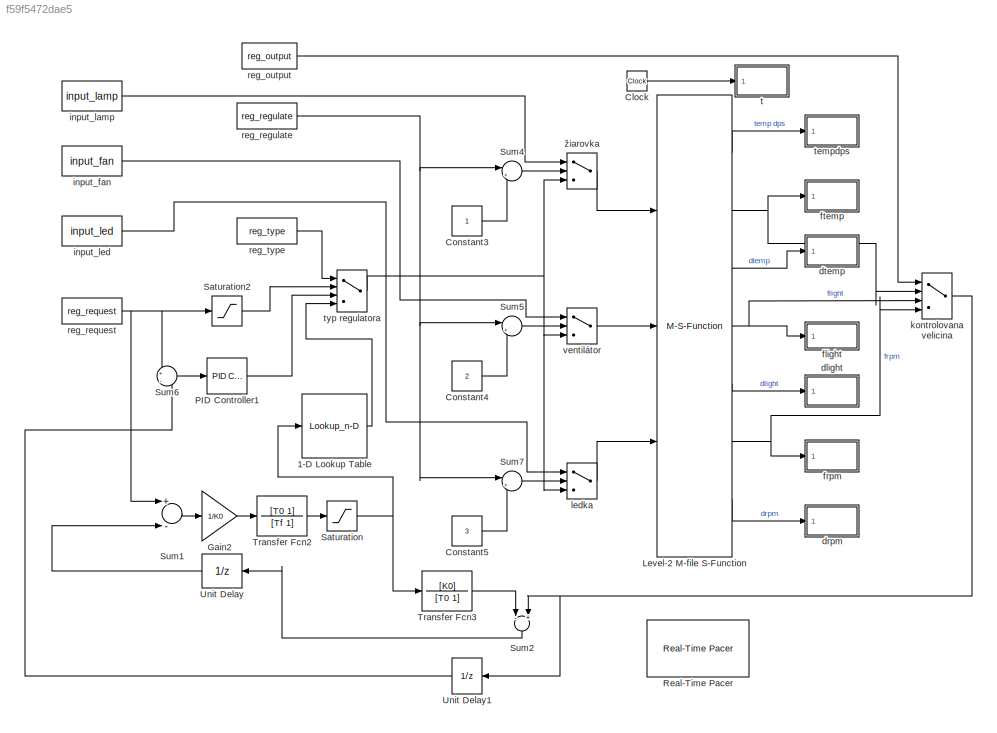
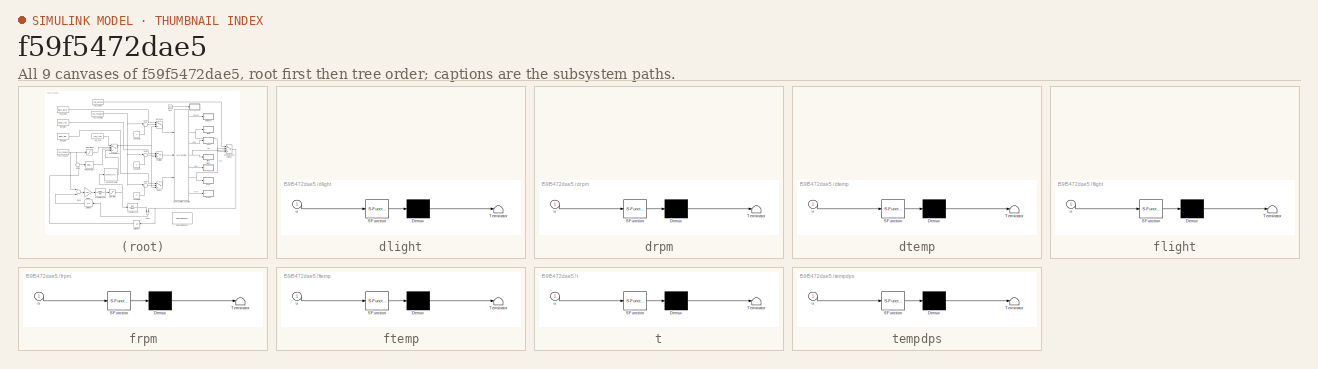
[diagram: thumbnail index - all 9 canvases of the model, root first then tree order]
MODEL slx_f59f5472dae5
KIND model
CONFIG AbsTol = auto
CONFIG EnableMultiTasking = on
CONFIG FixedStep = Ts
CONFIG MaxStep = auto
CONFIG MinStep = auto
CONFIG RelTol = 1e-3
CONFIG SampleTimeConstraint = Unconstrained
CONFIG Solver = ode4
CONFIG SolverName = ode4
CONFIG StartTime = 0.0
CONFIG StopTime = t_sim
BLOCK [Lookup_n-D] 1-D Lookup Table
  BreakpointsForDimension1 = vystupy
  NumberOfTableDimensions = 1
  Ports = [1, 1]
  Table = vstupy
  UseLastTableValue = on
BLOCK [Clock] Clock
BLOCK [Constant] Constant3
  SampleTime = Ts
BLOCK [Constant] Constant4
  SampleTime = Ts
  Value = 2
BLOCK [Constant] Constant5
  SampleTime = Ts
  Value = 3
BLOCK [Gain] Gain2
  Gain = 1/K0
BLOCK [M-S-Function] Level-2 M-file S-Function
  FunctionName = tos10
  Parameters = Ts,com,baud,fTt,fTl,fTf
  Ports = [3, 7]
BLOCK [Reference] PID Controller1  REF=simulink/Continuous/PID Controller
  Ports = [1, 1]
  SourceBlock = simulink/Continuous/PID Controller
  SourceProductBaseCode = SL
  SourceProductName = Simulink
  SourceType = PID 1dof
BLOCK [Reference] Real-Time Pacer  REF=tos_lib/Real-Time Pacer  (lib defined in mdl_b48aa653034c, slx_2f9688d23522)
  Ports = []
  SourceBlock = tos_lib/Real-Time Pacer
  SourceType = RealTime_Pacer
BLOCK [Saturate] Saturation
  InputPortMap = u0
  LowerLimit = Umin
  Ports = [1, 1]
  UpperLimit = Umax
BLOCK [Saturate] Saturation2
  InputPortMap = u0
  LowerLimit = 0
  Ports = [1, 1]
  SampleTime = Ts
  UpperLimit = 100
BLOCK [Sum] Sum1
  Inputs = +-
  Ports = [2, 1]
BLOCK [Sum] Sum2
  Inputs = -+
  Ports = [2, 1]
BLOCK [Sum] Sum4
  IconShape = round
  InputSameDT = off
  Inputs = |+-
  OutDataTypeStr = Inherit: Inherit via internal rule
  Ports = [2, 1]
  SampleTime = Ts
  SaturateOnIntegerOverflow = off
BLOCK [Sum] Sum5
  IconShape = round
  InputSameDT = off
  Inputs = |+-
  OutDataTypeStr = Inherit: Inherit via internal rule
  Ports = [2, 1]
  SampleTime = Ts
  SaturateOnIntegerOverflow = off
BLOCK [Sum] Sum6
  IconShape = round
  InputSameDT = off
  Inputs = +|-
  OutDataTypeStr = Inherit: Inherit via internal rule
  Ports = [2, 1]
  SampleTime = Ts
  SaturateOnIntegerOverflow = off
BLOCK [Sum] Sum7
  IconShape = round
  InputSameDT = off
  Inputs = |+-
  OutDataTypeStr = Inherit: Inherit via internal rule
  Ports = [2, 1]
  SampleTime = Ts
  SaturateOnIntegerOverflow = off
BLOCK [TransferFcn] Transfer Fcn2
  Denominator = [Tf 1]
  Numerator = [T0 1]
BLOCK [TransferFcn] Transfer Fcn3
  Denominator = [T0 1]
  Numerator = [K0]
BLOCK [UnitDelay] Unit Delay
  InputProcessing = Elements as channels (sample based)
  SampleTime = -1
BLOCK [UnitDelay] Unit Delay1
  SampleTime = Ts
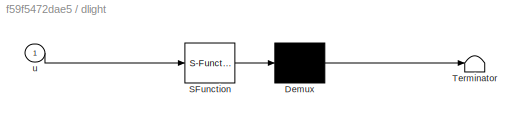
BLOCK [SubSystem] dlight
  ErrorFcn = Stateflow.Translate.translate
  PermitHierarchicalResolution = ExplicitOnly
  Ports = [1]
  RequestExecContextInheritance = off
  SFBlockType = MATLAB Function
  SystemSampleTime = Ts
  TreatAsAtomicUnit = on
  Variant = off
BLOCK [Demux] dlight/ Demux 
  Outputs = 1
  Ports = [1, 1]
BLOCK [S-Function] dlight/ SFunction 
  EnableBusSupport = on
  FunctionName = sf_sfun
  PortCounts = [1 1]
  Ports = [1, 1]
  SFcnIsStateOwnerBlock = off
  SFunctionDeploymentMode = off
  Tag = Stateflow S-Function thermo_simple_with_imc 7
BLOCK [Terminator] dlight/ Terminator 
BLOCK [Inport] dlight/u
  IconDisplay = Port number
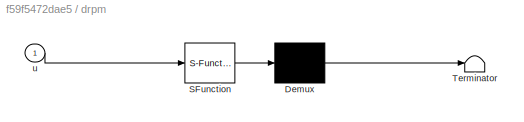
BLOCK [SubSystem] drpm
  ErrorFcn = Stateflow.Translate.translate
  PermitHierarchicalResolution = ExplicitOnly
  Ports = [1]
  RequestExecContextInheritance = off
  SFBlockType = MATLAB Function
  SystemSampleTime = Ts
  TreatAsAtomicUnit = on
  Variant = off
BLOCK [Demux] drpm/ Demux 
  Outputs = 1
  Ports = [1, 1]
BLOCK [S-Function] drpm/ SFunction 
  EnableBusSupport = on
  FunctionName = sf_sfun
  PortCounts = [1 1]
  Ports = [1, 1]
  SFcnIsStateOwnerBlock = off
  SFunctionDeploymentMode = off
  Tag = Stateflow S-Function thermo_simple_with_imc 5
BLOCK [Terminator] drpm/ Terminator 
BLOCK [Inport] drpm/u
  IconDisplay = Port number
BLOCK [SubSystem] dtemp
  ErrorFcn = Stateflow.Translate.translate
  PermitHierarchicalResolution = ExplicitOnly
  Ports = [1]
  RequestExecContextInheritance = off
  SFBlockType = MATLAB Function
  SystemSampleTime = Ts
  TreatAsAtomicUnit = on
  Variant = off
BLOCK [Demux] dtemp/ Demux 
  Outputs = 1
  Ports = [1, 1]
BLOCK [S-Function] dtemp/ SFunction 
  EnableBusSupport = on
  FunctionName = sf_sfun
  PortCounts = [1 1]
  Ports = [1, 1]
  SFcnIsStateOwnerBlock = off
  SFunctionDeploymentMode = off
  Tag = Stateflow S-Function thermo_simple_with_imc 3
BLOCK [Terminator] dtemp/ Terminator 
BLOCK [Inport] dtemp/u
  IconDisplay = Port number
BLOCK [SubSystem] flight
  ErrorFcn = Stateflow.Translate.translate
  PermitHierarchicalResolution = ExplicitOnly
  Ports = [1]
  RequestExecContextInheritance = off
  SFBlockType = MATLAB Function
  SystemSampleTime = Ts
  TreatAsAtomicUnit = on
  Variant = off
BLOCK [Demux] flight/ Demux 
  Outputs = 1
  Ports = [1, 1]
BLOCK [S-Function] flight/ SFunction 
  EnableBusSupport = on
  FunctionName = sf_sfun
  PortCounts = [1 1]
  Ports = [1, 1]
  SFcnIsStateOwnerBlock = off
  SFunctionDeploymentMode = off
  Tag = Stateflow S-Function thermo_simple_with_imc 6
BLOCK [Terminator] flight/ Terminator 
BLOCK [Inport] flight/u
  IconDisplay = Port number
BLOCK [SubSystem] frpm
  ErrorFcn = Stateflow.Translate.translate
  PermitHierarchicalResolution = ExplicitOnly
  Ports = [1]
  RequestExecContextInheritance = off
  SFBlockType = MATLAB Function
  SystemSampleTime = Ts
  TreatAsAtomicUnit = on
  Variant = off
BLOCK [Demux] frpm/ Demux 
  Outputs = 1
  Ports = [1, 1]
BLOCK [S-Function] frpm/ SFunction 
  EnableBusSupport = on
  FunctionName = sf_sfun
  PortCounts = [1 1]
  Ports = [1, 1]
  SFcnIsStateOwnerBlock = off
  SFunctionDeploymentMode = off
  Tag = Stateflow S-Function thermo_simple_with_imc 4
BLOCK [Terminator] frpm/ Terminator 
BLOCK [Inport] frpm/u
  IconDisplay = Port number
BLOCK [SubSystem] ftemp
  ErrorFcn = Stateflow.Translate.translate
  PermitHierarchicalResolution = ExplicitOnly
  Ports = [1]
  RequestExecContextInheritance = off
  SFBlockType = MATLAB Function
  SystemSampleTime = Ts
  TreatAsAtomicUnit = on
  Variant = off
BLOCK [Demux] ftemp/ Demux 
  Outputs = 1
  Ports = [1, 1]
BLOCK [S-Function] ftemp/ SFunction 
  EnableBusSupport = on
  FunctionName = sf_sfun
  PortCounts = [1 1]
  Ports = [1, 1]
  SFcnIsStateOwnerBlock = off
  SFunctionDeploymentMode = off
  Tag = Stateflow S-Function thermo_simple_with_imc 1
BLOCK [Terminator] ftemp/ Terminator 
BLOCK [Inport] ftemp/u
  IconDisplay = Port number
BLOCK [Constant] input_fan
  SampleTime = Ts
  Value = input_fan
BLOCK [Constant] input_lamp
  SampleTime = Ts
  Value = input_lamp
BLOCK [Constant] input_led
  SampleTime = Ts
  Value = input_led
BLOCK [MultiPortSwitch] kontrolovana velicina
  InputSameDT = off
  OutDataTypeStr = double
  Ports = [4, 1]
  SampleTime = Ts
  SaturateOnIntegerOverflow = off
BLOCK [Switch] ledka
  Criteria = u2 ~= 0
  InputSameDT = off
  OutDataTypeStr = double
  SaturateOnIntegerOverflow = off
BLOCK [Constant] reg_output
  SampleTime = Ts
  Value = reg_output
BLOCK [Constant] reg_regulate
  SampleTime = Ts
  Value = reg_regulate
BLOCK [Constant] reg_request
  SampleTime = Ts
  Value = reg_request
BLOCK [Constant] reg_type
  SampleTime = Ts
  Value = reg_type
BLOCK [SubSystem] t
  ErrorFcn = Stateflow.Translate.translate
  PermitHierarchicalResolution = ExplicitOnly
  Ports = [1]
  RequestExecContextInheritance = off
  SFBlockType = MATLAB Function
  SystemSampleTime = Ts
  TreatAsAtomicUnit = on
  Variant = off
BLOCK [Demux] t/ Demux 
  Outputs = 1
  Ports = [1, 1]
BLOCK [S-Function] t/ SFunction 
  EnableBusSupport = on
  FunctionName = sf_sfun
  PortCounts = [1 1]
  Ports = [1, 1]
  SFcnIsStateOwnerBlock = off
  SFunctionDeploymentMode = off
  Tag = Stateflow S-Function thermo_simple_with_imc 8
BLOCK [Terminator] t/ Terminator 
BLOCK [Inport] t/u
  IconDisplay = Port number
BLOCK [SubSystem] tempdps
  ErrorFcn = Stateflow.Translate.translate
  PermitHierarchicalResolution = ExplicitOnly
  Ports = [1]
  RequestExecContextInheritance = off
  SFBlockType = MATLAB Function
  SystemSampleTime = Ts
  TreatAsAtomicUnit = on
  Variant = off
BLOCK [Demux] tempdps/ Demux 
  Outputs = 1
  Ports = [1, 1]
BLOCK [S-Function] tempdps/ SFunction 
  EnableBusSupport = on
  FunctionName = sf_sfun
  PortCounts = [1 1]
  Ports = [1, 1]
  SFcnIsStateOwnerBlock = off
  SFunctionDeploymentMode = off
  Tag = Stateflow S-Function thermo_simple_with_imc 2
BLOCK [Terminator] tempdps/ Terminator 
BLOCK [Inport] tempdps/u
  IconDisplay = Port number
BLOCK [MultiPortSwitch] typ regulatora
  InputSameDT = off
  OutDataTypeStr = double
  Ports = [4, 1]
  SampleTime = Ts
  SaturateOnIntegerOverflow = off
BLOCK [Switch] ventilátor
  Criteria = u2 ~= 0
  InputSameDT = off
  OutDataTypeStr = double
  SaturateOnIntegerOverflow = off
BLOCK [Switch] žiarovka
  Criteria = u2 ~= 0
  InputSameDT = off
  OutDataTypeStr = double
  SaturateOnIntegerOverflow = off
LINE 1-D Lookup Table:1 -> typ regulatora:4
LINE Clock:1 -> t:1
LINE Constant3:1 -> Sum4:2
LINE Constant4:1 -> Sum5:2
LINE Constant5:1 -> Sum7:2
LINE Gain2:1 -> Transfer Fcn2:1
LINE Level-2 M-file S-Function:1 -> tempdps:1
NET Level-2 M-file S-Function:2 -> ftemp:1, kontrolovana velicina:2
LINE Level-2 M-file S-Function:3 -> dtemp:1
NET Level-2 M-file S-Function:4 -> flight:1, kontrolovana velicina:3
LINE Level-2 M-file S-Function:5 -> dlight:1
NET Level-2 M-file S-Function:6 -> frpm:1, kontrolovana velicina:4
LINE Level-2 M-file S-Function:7 -> drpm:1
LINE PID Controller1:1 -> typ regulatora:3
LINE Saturation2:1 -> typ regulatora:2
NET Saturation:1 -> 1-D Lookup Table:1, Transfer Fcn3:1
LINE Sum1:1 -> Gain2:1
LINE Sum2:1 -> Unit Delay:1
LINE Sum4:1 -> žiarovka:2
LINE Sum5:1 -> ventilátor:2
LINE Sum6:1 -> PID Controller1:1
LINE Sum7:1 -> ledka:2
LINE Transfer Fcn2:1 -> Saturation:1
LINE Transfer Fcn3:1 -> Sum2:1
LINE Unit Delay1:1 -> Sum6:2
LINE Unit Delay:1 -> Sum1:2
LINE input_fan:1 -> ventilátor:1
LINE input_lamp:1 -> žiarovka:1
LINE input_led:1 -> ledka:1
NET kontrolovana velicina:1 -> Sum2:2, Unit Delay1:1
LINE ledka:1 -> Level-2 M-file S-Function:3
LINE reg_output:1 -> kontrolovana velicina:1
NET reg_regulate:1 -> Sum4:1, Sum5:1, Sum7:1
NET reg_request:1 -> Saturation2:1, Sum1:1, Sum6:1
LINE reg_type:1 -> typ regulatora:1
NET typ regulatora:1 -> ledka:3, ventilátor:3, žiarovka:3
LINE ventilátor:1 -> Level-2 M-file S-Function:2
LINE žiarovka:1 -> Level-2 M-file S-Function:1
note: NET lines group one-source signal fan-out (src -> all destinations, sorted); 1:1 wires keep LINE
CHART ftemp states=1 transitions=1
  STATE_LABEL 'eML_blk_kernel()'
  STATE_LABEL "SCRIPT:\nfunction fcn(u)\n%#eml\neml.extrinsic('num2str');\neml.extrinsic('strcat');\neml.extrinsic('evalin');\nevalin('base',strcat('ftemp(end+1)=', num2str(u),';'));\nend"
CHART tempdps states=1 transitions=1
  STATE_LABEL 'eML_blk_kernel()'
  STATE_LABEL "SCRIPT:\nfunction fcn(u)\n%#eml\neml.extrinsic('num2str');\neml.extrinsic('strcat');\neml.extrinsic('evalin');\nevalin('base',strcat('tempdps(end+1)=', num2str(u),';'));\nend"
CHART dtemp states=1 transitions=1
  STATE_LABEL 'eML_blk_kernel()'
  STATE_LABEL "SCRIPT:\nfunction fcn(u)\n%#eml\neml.extrinsic('num2str');\neml.extrinsic('strcat');\neml.extrinsic('evalin');\nevalin('base',strcat('dtemp(end+1)=', num2str(u),';'));\nend"
CHART frpm states=1 transitions=1
  STATE_LABEL 'eML_blk_kernel()'
  STATE_LABEL "SCRIPT:\nfunction fcn(u)\n%#eml\neml.extrinsic('num2str');\neml.extrinsic('strcat');\neml.extrinsic('evalin');\nevalin('base',strcat('frpm(end+1)=', num2str(u),';'));\nend"
CHART drpm states=1 transitions=1
  STATE_LABEL 'eML_blk_kernel()'
  STATE_LABEL "SCRIPT:\nfunction fcn(u)\n%#eml\neml.extrinsic('num2str');\neml.extrinsic('strcat');\neml.extrinsic('evalin');\nevalin('base',strcat('drpm(end+1)=', num2str(u),';'));\nend"
CHART flight states=1 transitions=1
  STATE_LABEL 'eML_blk_kernel()'
  STATE_LABEL "SCRIPT:\nfunction fcn(u)\n%#eml\neml.extrinsic('num2str');\neml.extrinsic('strcat');\neml.extrinsic('evalin');\nevalin('base',strcat('flight(end+1)=', num2str(u),';'));\nend"
CHART dlight states=1 transitions=1
  STATE_LABEL 'eML_blk_kernel()'
  STATE_LABEL "SCRIPT:\nfunction fcn(u)\n%#eml\neml.extrinsic('num2str');\neml.extrinsic('strcat');\neml.extrinsic('evalin');\nevalin('base',strcat('dlight(end+1)=', num2str(u),';'));\nend"
CHART t states=1 transitions=1
  STATE_LABEL 'eML_blk_kernel()'
  STATE_LABEL "SCRIPT:\nfunction fcn(u)\n%#eml\neml.extrinsic('num2str');\neml.extrinsic('strcat');\neml.extrinsic('evalin');\nevalin('base',strcat('t(end+1)=', num2str(u),';'));\nend"
